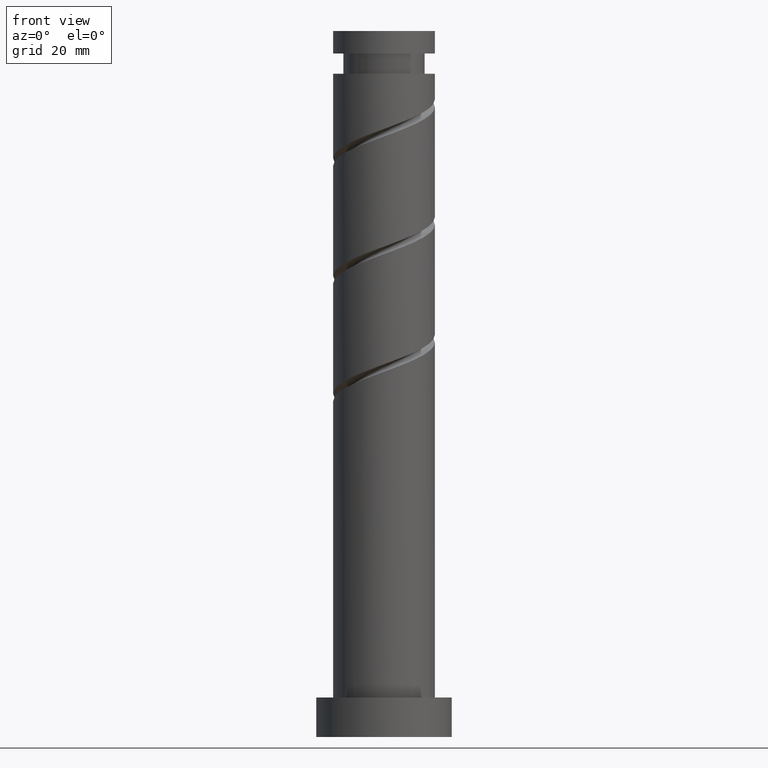
[diagram: clean part render]
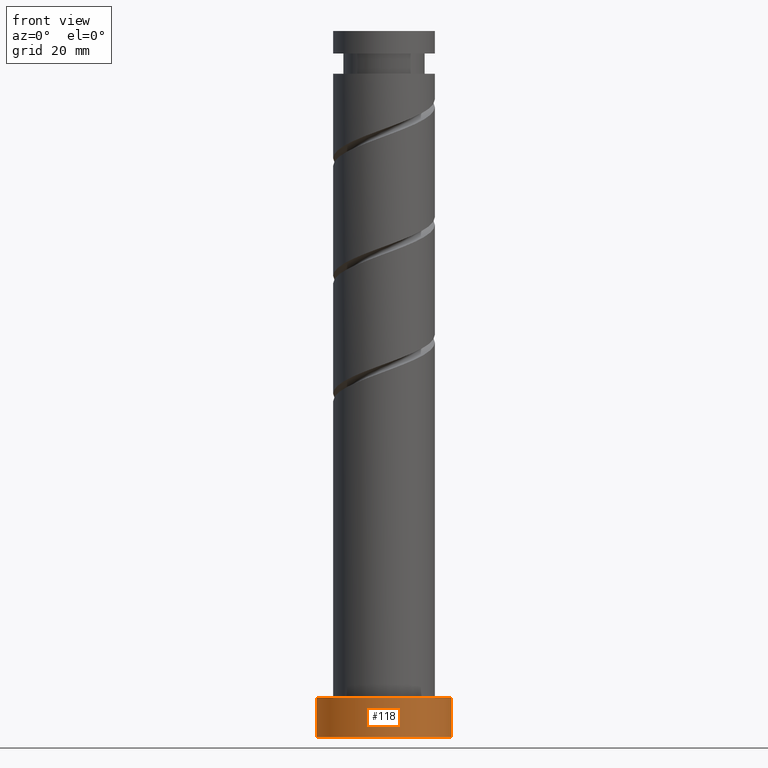
[diagram: same view with one face highlighted and labeled with its STEP entity id]
A machine part, front view. The second image highlights one B-rep face of the part: STEP entity #118.
In plain terms, the highlighted cylindrical surface (partial cylindrical patch) has radius 12 mm, axis along (-0, -0, -1).
Its self-contained STEP definition (entity closure, byte-faithful):
#4 = CARTESIAN_POINT ( 'NONE',  ( 0.000000000000000000, 0.000000000000000000, 7.000000000000000000 ) ) ;
#49 = VERTEX_POINT ( 'NONE', #1271 ) ;
#68 = VERTEX_POINT ( 'NONE', #878 ) ;
#79 = EDGE_CURVE ( 'NONE', #551, #68, #1400, .T. ) ;
#91 = LINE ( 'NONE', #709, #298 ) ;
#118 = ADVANCED_FACE ( 'NONE', ( #1493 ), #887, .T. ) ;
#190 = CARTESIAN_POINT ( 'NONE',  ( -12.00000000000000178, 0.000000000000000000, 7.000000000000000000 ) ) ;
#233 = EDGE_CURVE ( 'NONE', #1275, #49, #91, .T. ) ;
#298 = VECTOR ( 'NONE', #821, 1000.000000000000000 ) ;
#340 = DIRECTION ( 'NONE',  ( 1.000000000000000000, 0.000000000000000000, 0.000000000000000000 ) ) ;
#374 = ORIENTED_EDGE ( 'NONE', *, *, #79, .F. ) ;
#401 = EDGE_CURVE ( 'NONE', #1275, #551, #1077, .T. ) ;
#426 = CARTESIAN_POINT ( 'NONE',  ( 12.00000000000000178, 1.469576158976824144E-15, 7.000000000000000000 ) ) ;
#472 = ORIENTED_EDGE ( 'NONE', *, *, #401, .F. ) ;
#488 = ORIENTED_EDGE ( 'NONE', *, *, #233, .T. ) ;
#551 = VERTEX_POINT ( 'NONE', #426 ) ;
#584 = VECTOR ( 'NONE', #650, 1000.000000000000000 ) ;
#650 = DIRECTION ( 'NONE',  ( -0.000000000000000000, -0.000000000000000000, -1.000000000000000000 ) ) ;
#670 = AXIS2_PLACEMENT_3D ( 'NONE', #1545, #1432, #340 ) ;
#709 = CARTESIAN_POINT ( 'NONE',  ( -12.00000000000000178, 0.000000000000000000, 7.000000000000000000 ) ) ;
#722 = DIRECTION ( 'NONE',  ( 1.000000000000000000, 0.000000000000000000, 0.000000000000000000 ) ) ;
#766 = CARTESIAN_POINT ( 'NONE',  ( 0.000000000000000000, 0.000000000000000000, 7.000000000000000000 ) ) ;
#821 = DIRECTION ( 'NONE',  ( -0.000000000000000000, -0.000000000000000000, -1.000000000000000000 ) ) ;
#878 = CARTESIAN_POINT ( 'NONE',  ( 12.00000000000000178, 1.469576158976824144E-15, 0.000000000000000000 ) ) ;
#887 = CYLINDRICAL_SURFACE ( 'NONE', #968, 12.00000000000000178 ) ;
#896 = CARTESIAN_POINT ( 'NONE',  ( 12.00000000000000178, 1.469576158976824144E-15, 7.000000000000000000 ) ) ;
#968 = AXIS2_PLACEMENT_3D ( 'NONE', #766, #1131, #1260 ) ;
#1077 = CIRCLE ( 'NONE', #1476, 12.00000000000000178 ) ;
#1110 = EDGE_LOOP ( 'NONE', ( #374, #472, #488, #1406 ) ) ;
#1116 = DIRECTION ( 'NONE',  ( 0.000000000000000000, 0.000000000000000000, 1.000000000000000000 ) ) ;
#1131 = DIRECTION ( 'NONE',  ( -0.000000000000000000, -0.000000000000000000, -1.000000000000000000 ) ) ;
#1250 = CIRCLE ( 'NONE', #670, 12.00000000000000178 ) ;
#1260 = DIRECTION ( 'NONE',  ( -1.000000000000000000, 0.000000000000000000, 0.000000000000000000 ) ) ;
#1271 = CARTESIAN_POINT ( 'NONE',  ( -12.00000000000000178, 0.000000000000000000, 0.000000000000000000 ) ) ;
#1275 = VERTEX_POINT ( 'NONE', #190 ) ;
#1289 = EDGE_CURVE ( 'NONE', #49, #68, #1250, .T. ) ;
#1400 = LINE ( 'NONE', #896, #584 ) ;
#1406 = ORIENTED_EDGE ( 'NONE', *, *, #1289, .T. ) ;
#1432 = DIRECTION ( 'NONE',  ( 0.000000000000000000, 0.000000000000000000, 1.000000000000000000 ) ) ;
#1476 = AXIS2_PLACEMENT_3D ( 'NONE', #4, #1116, #722 ) ;
#1493 = FACE_OUTER_BOUND ( 'NONE', #1110, .T. ) ;
#1545 = CARTESIAN_POINT ( 'NONE',  ( 0.000000000000000000, 0.000000000000000000, 0.000000000000000000 ) ) ;